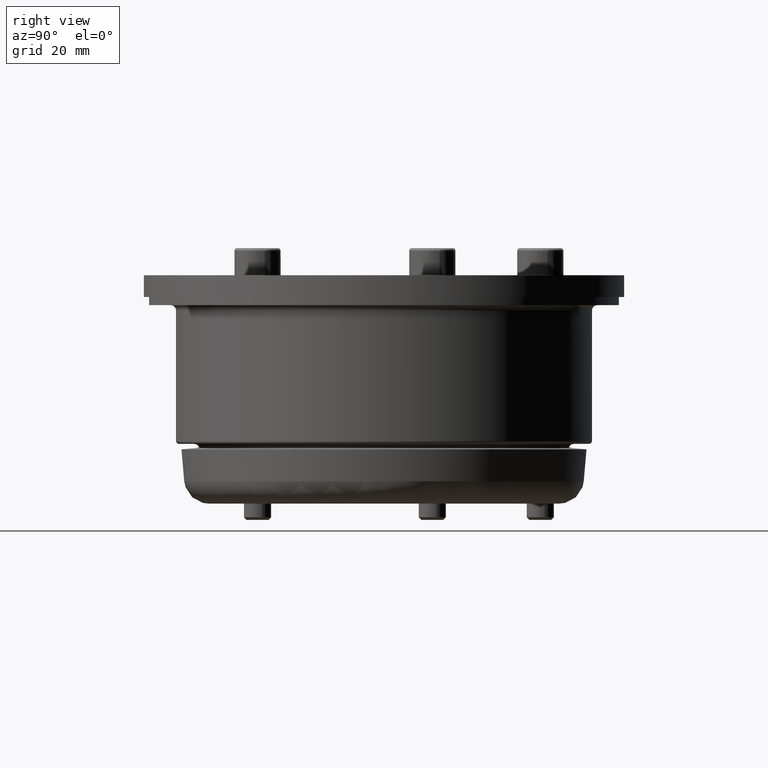
[diagram: clean part render]
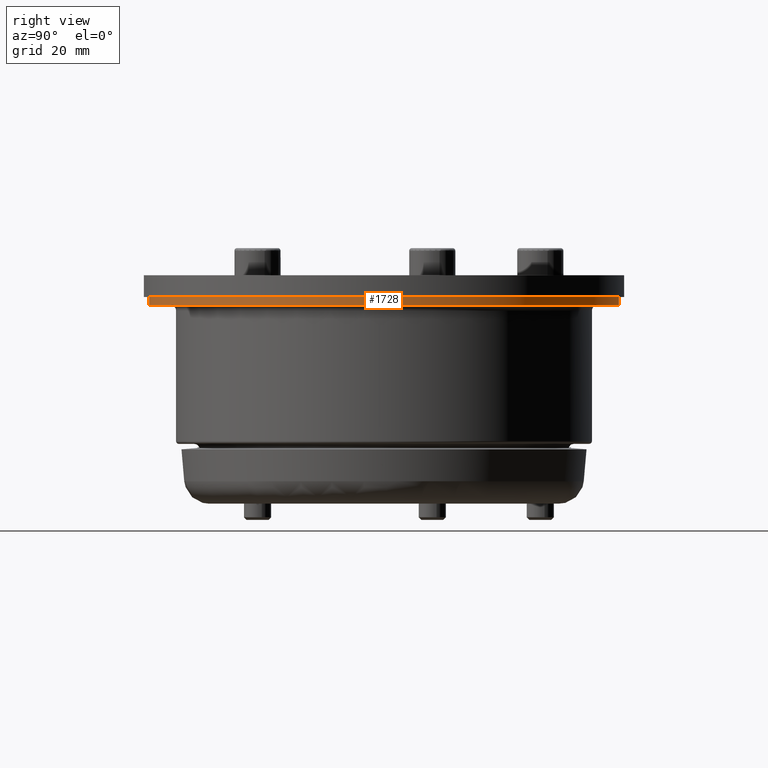
[diagram: same view with one face highlighted and labeled with its STEP entity id]
A machine part, right view. The second image highlights one B-rep face of the part: STEP entity #1728.
In plain terms, the highlighted cylindrical surface (bore or boss wall) has radius 43.2 mm, axis along (0, 0, 1).
Its self-contained STEP definition (entity closure, byte-faithful):
#113=LINE('',#3029,#184);
#184=VECTOR('',#2453,41.2);
#244=CYLINDRICAL_SURFACE('',#2018,43.2);
#387=FACE_OUTER_BOUND('',#484,.T.);
#484=EDGE_LOOP('',(#1385,#1386,#1387,#1388));
#652=CIRCLE('',#1991,43.2);
#667=CIRCLE('',#2019,43.2);
#821=VERTEX_POINT('',#2980);
#835=VERTEX_POINT('',#3027);
#1024=EDGE_CURVE('',#821,#821,#652,.T.);
#1044=EDGE_CURVE('',#835,#835,#667,.T.);
#1045=EDGE_CURVE('',#835,#821,#113,.T.);
#1385=ORIENTED_EDGE('',*,*,#1044,.F.);
#1386=ORIENTED_EDGE('',*,*,#1045,.T.);
#1387=ORIENTED_EDGE('',*,*,#1024,.T.);
#1388=ORIENTED_EDGE('',*,*,#1045,.F.);
#1728=ADVANCED_FACE('',(#387),#244,.T.);
#1991=AXIS2_PLACEMENT_3D('',#2981,#2390,#2391);
#2018=AXIS2_PLACEMENT_3D('',#3026,#2449,#2450);
#2019=AXIS2_PLACEMENT_3D('',#3028,#2451,#2452);
#2390=DIRECTION('center_axis',(0.,-1.83697019872103E-16,1.));
#2391=DIRECTION('ref_axis',(0.,-1.,-1.83697019872103E-16));
#2449=DIRECTION('center_axis',(0.,-1.83697019872103E-16,1.));
#2450=DIRECTION('ref_axis',(0.,-1.,-1.83697019872103E-16));
#2451=DIRECTION('center_axis',(0.,0.,1.));
#2452=DIRECTION('ref_axis',(0.,-1.,-1.83697019872103E-16));
#2453=DIRECTION('',(0.,1.83697019872103E-16,-1.));
#2980=CARTESIAN_POINT('',(-5.29047417231657E-15,43.2,33.5));
#2981=CARTESIAN_POINT('Origin',(0.,-6.15385016571545E-15,33.5));
#3026=CARTESIAN_POINT('Origin',(0.,-6.29162293061953E-15,34.25));
#3027=CARTESIAN_POINT('',(-5.29047417231657E-15,43.2,35.));
#3028=CARTESIAN_POINT('Origin',(0.,-6.4293956955236E-15,35.));
#3029=CARTESIAN_POINT('',(-5.29047417231657E-15,43.2,34.25));